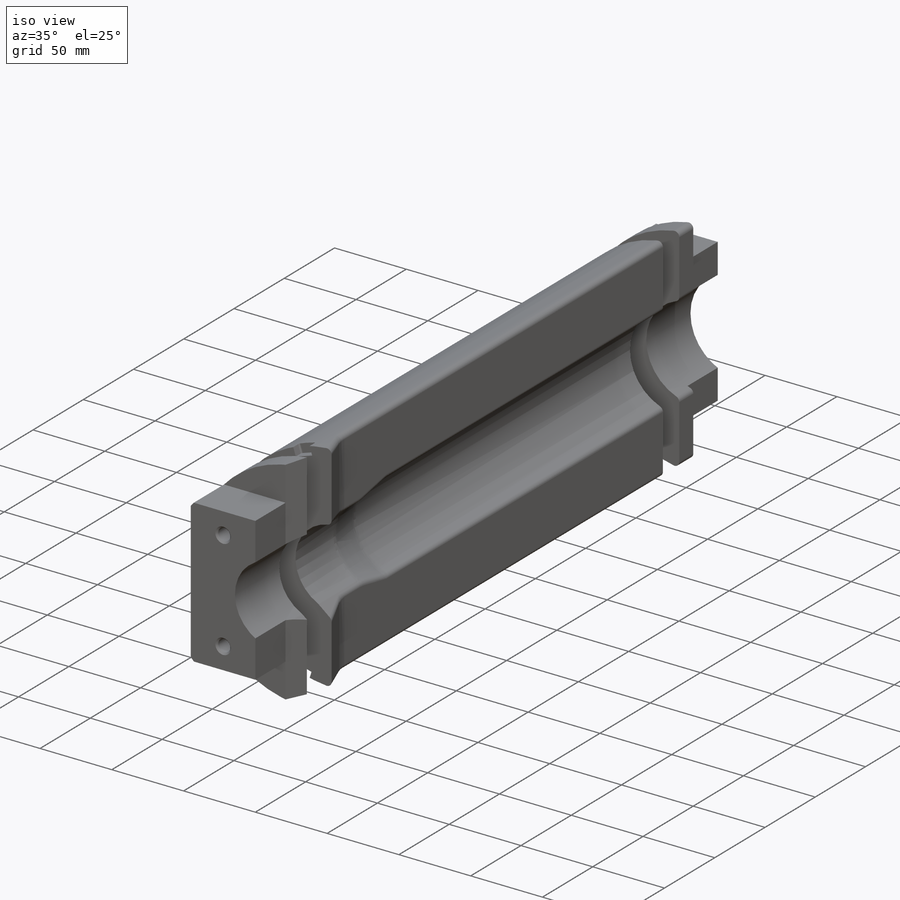
[diagram: iso view]
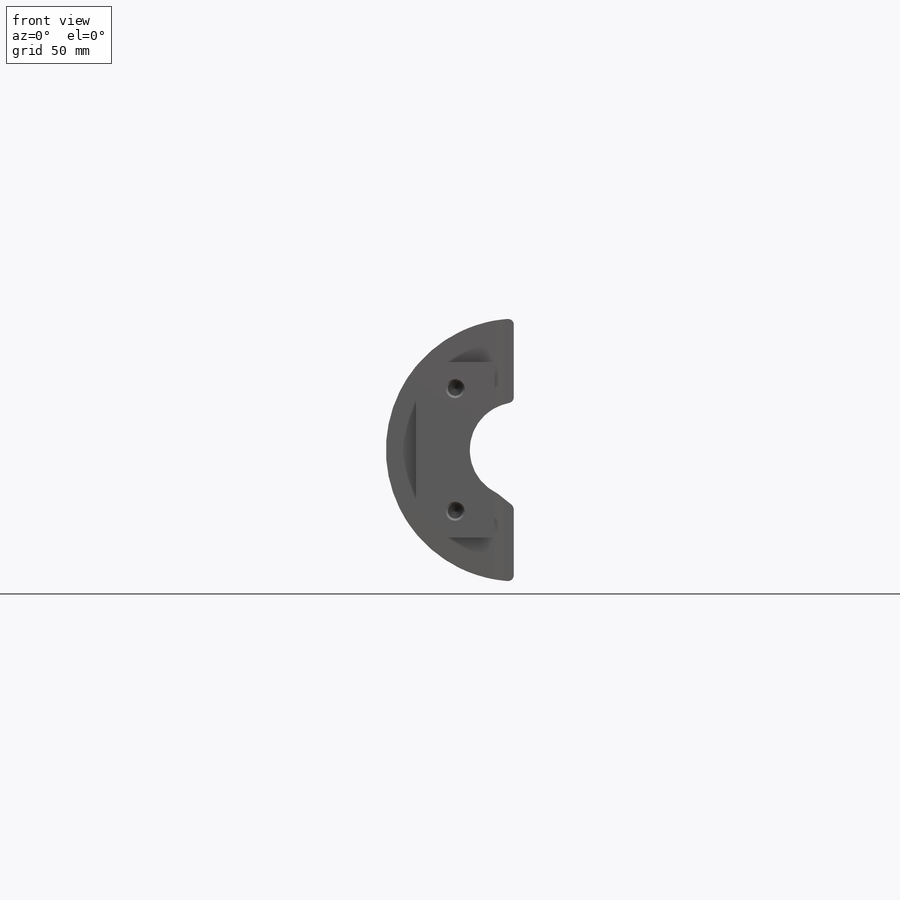
[diagram: front view]
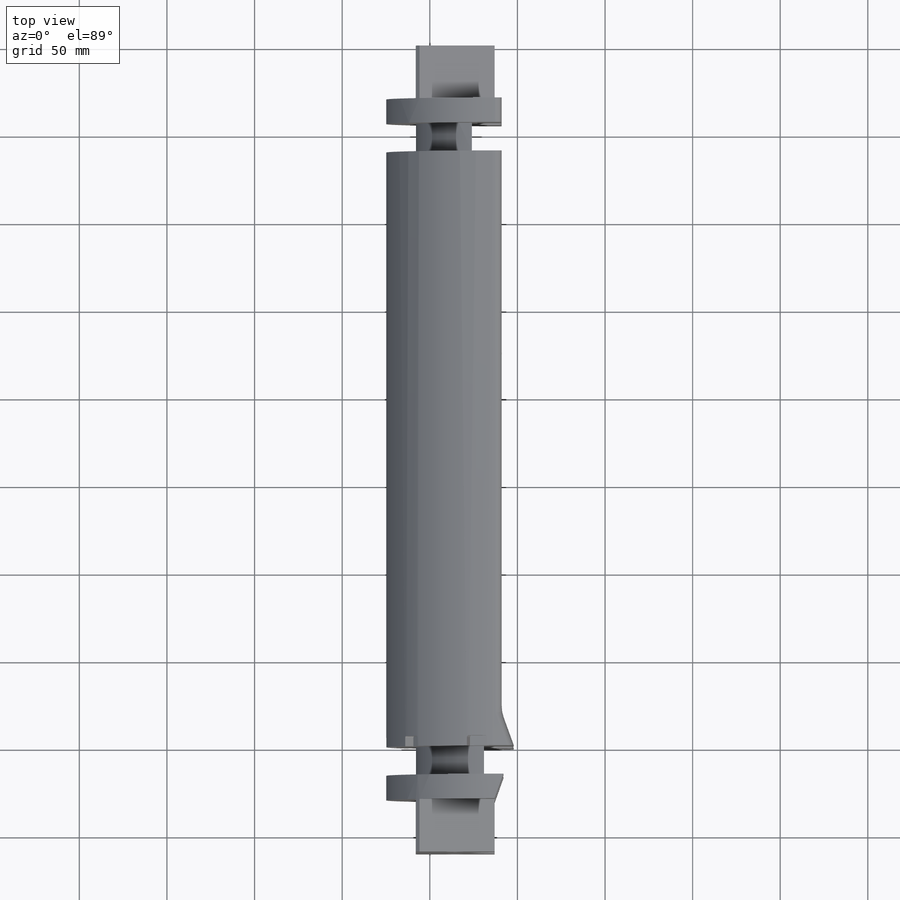
[diagram: top view]
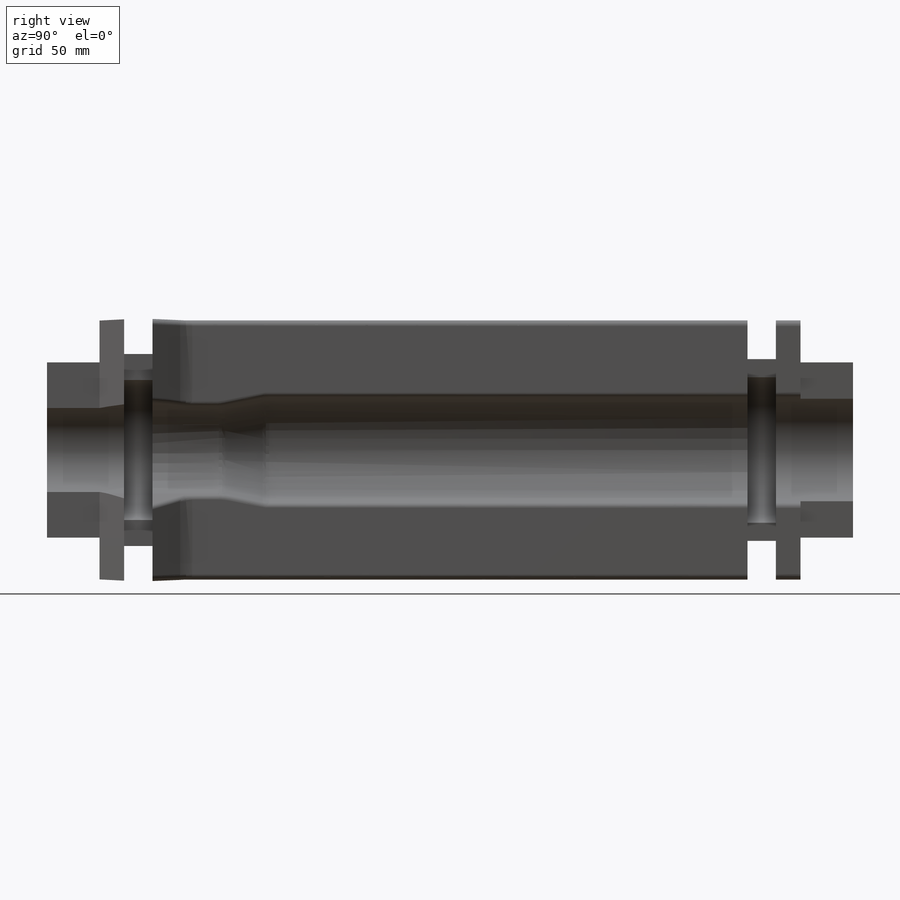
[diagram: right view]
SOLIDWORKS PART (.sldprt)
format: sldprt  version: not decoded by parser v0  size: 2,071,552 bytes
history: native  units: mm
features: sketch x23, cut_extrude x8, fillet x5, extrude x5, thread x4, plane x3, hole x3, mirror x2, material x1, revolve x1, shell x1, boolean_combine x1, pattern_circular x1 (+11 scaffold rows collapsed)
feature tree (69):
  scaffold x11  (default folders/planes/origin — collapsed)
  material  "6061 Alloy"
  sketch  "Sketch1"  dims[c1.D1=~16.765485mm c2.D1=25.0deg c3.D1=~33.020715mm c4.D1=25.0deg c4.D2=~33.531886mm c5.D2=~0.963452deg c6.D2=2.0mm c6.D3=2.0mm c6.D4=26.25mm c6.D5=74.14mm c6.D6=22.0mm c6.D1=76.0mm c7.D3=26.25mm c7.D4=2.0mm c7.D2=40.0mm c8.D4=31.0mm c8.D5=25.0mm c8.D6=370.0mm c8.D7=30.0mm]
  revolve  "Revolve1"  Angle=360deg
  sketch  "Sketch31"
  cut_extrude  "Cut-Extrude8"  [1 undecoded]
  sketch  "Sketch14"  dims[c1.D1=~77.431867mm c2.D1=~179.176258deg c3.D1=2.0mm c3.D2=2.2mm c3.D3=22.0mm c3.D4=10.2mm c4.D1=1.2mm c4.D5=416.0mm c4.D4=8.0mm c4.D3=22.0mm c5.D5=8.0mm]
  cut_extrude  "Cut-Extrude3"  [1 undecoded]
  plane  "Plane2"
  plane  "Plane3"  Offset=40mm
  sketch  "Sketch39"  dims[D1=8.0mm D2=10.0mm]
  cut_extrude  "Cut-Extrude11"  [1 undecoded]
  shell  "Shell2"  Thickness=1mm
  fillet  "Fillet18"  Radius=3.2mm
  fillet  "Fillet19"  Radius=4.2mm
  fillet  "Fillet20"  Radius=20mm
  fillet  "Fillet21"  Radius=20mm
  sketch  "Sketch16"  dims[D1=160.0mm]
  extrude  "Boss-Extrude1"  [1 undecoded]
  boolean_combine  "Combine3"
  sketch  "Sketch6"  dims[c1.D3=75.0mm c1.D1=~125.03759mm c2.D1=18.0deg c2.D2=12.0mm c2.D3=69.0mm c2.D4=30.0mm]
  cut_extrude  "Extrude5"  Depth=16mm
  pattern_circular  "CirPattern1"  Count=5 Angle=36deg
  fillet  "Fillet5"  Radius=1mm
  sketch  "Sketch21"  dims[D1=17.0mm]
  cut_extrude  "Cut-Extrude5"  Depth=16.25mm
  sketch  "Sketch23"  dims[c1.D2=17.0mm c1.D1=17.0mm c2.D2=17.0mm c2.D1=17.0mm]
  cut_extrude  "Cut-Extrude10"  [1 undecoded]
  sketch  "Sketch22"  dims[c1.D2=4.0mm c1.D3=17.0mm c1.D1=17.0mm c2.D2=17.0mm]
  cut_extrude  "Cut-Extrude6"  Depth=16.25mm
  sketch  "Sketch26"  dims[c1.D1=45.0mm c1.D2=100.0mm c2.D1=100.0mm c2.D2=45.0mm c2.D3=35.0mm c3.D1=45.0mm c3.D2=100.0mm c3.D3=13.0mm c4.D1=45.0mm c4.D2=100.0mm c4.D4=35.0mm c4.D5=35.5mm]
  extrude  "Boss-Extrude4"  Depth=30mm
  sketch  "Sketch27"
  extrude  "Boss-Extrude5"  Depth=30mm
  sketch  "Sketch28"
  sketch  "Sketch29"
  hole  "3/8-24 Tapped Hole1"  Diameter=8.4328mm Depth=24.35mm
  sketch  "3DSketch1"
  sketch  "Sketch30"  dims[hole-wizard template sketch: 39 standard entries collapsed; hole parameters kept: c13.Tap Drill Dia.=8.4328mm c13.Tap Drill Depth=24.35mm c13.Near C'Sink Dia.=10.795mm c13.D4=~33.297463mm c13.Near C'Sink Angle=90.0deg c14.D5=~14.816244mm c14.Drill Angle=118.0deg]
  thread  "Hole Thread1"  Diameter=19.05mm  [1 undecoded]
  thread  "Hole Thread2"  Diameter=19.05mm  [1 undecoded]
  mirror  "Mirror1"
  sketch  "Sketch32"  dims[D1=13.0mm D2=58.0mm D3=100.0mm]
  extrude  "Boss-Extrude6"  Depth=30mm
  sketch  "Sketch33"
  extrude  "Boss-Extrude7"  Depth=30mm
  sketch  "Sketch34"  dims[c1.D1=35.5mm c1.D2=~110.145841mm c2.D2=90.0deg c3.D2=35.0mm]
  hole  "3/8-24 Tapped Hole2"  Diameter=8.4328mm Depth=24.35mm
  sketch  "3DSketch2"
  sketch  "Sketch35"  dims[hole-wizard template sketch: 39 standard entries collapsed; hole parameters kept: c13.Tap Drill Dia.=8.4328mm c13.Tap Drill Depth=24.35mm c13.Near C'Sink Dia.=10.795mm c13.D4=~33.297463mm c13.Near C'Sink Angle=90.0deg c14.D5=~14.816244mm c14.Drill Angle=118.0deg]
  thread  "Hole Thread3"  Diameter=19.05mm  [1 undecoded]
  hole  "3/8-24 Tapped Hole3"  Diameter=8.4328mm Depth=24.35mm
  sketch  "Sketch37"
  sketch  "Sketch36"  dims[hole-wizard template sketch: 39 standard entries collapsed; hole parameters kept: c13.Tap Drill Dia.=8.4328mm c13.Tap Drill Depth=24.35mm c13.Near C'Sink Dia.=10.795mm c13.D4=~33.297463mm c13.Near C'Sink Angle=90.0deg c14.D5=~14.816244mm c14.Drill Angle=118.0deg]
  thread  "Hole Thread4"  Diameter=19.05mm  [1 undecoded]
  mirror  "Mirror2"
  plane  "Plane1"
  sketch  "Sketch38"
  cut_extrude  "Cut-Extrude9"  [1 undecoded]
decode coverage: 36 of 54 modeling features carry decoded parameters
note: ~ marks probable driven/reference dimensions
note: 10 parameter values undecoded
summary: no parameter record found for 6 features
note: suppression state not decoded; provenance and decode notes live in map.json
